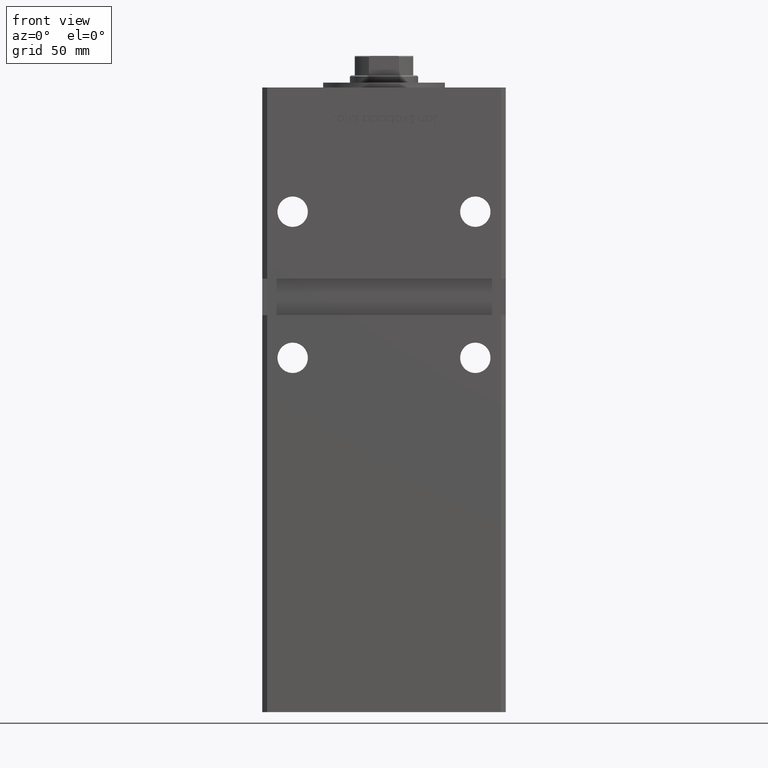
[diagram: clean part render]
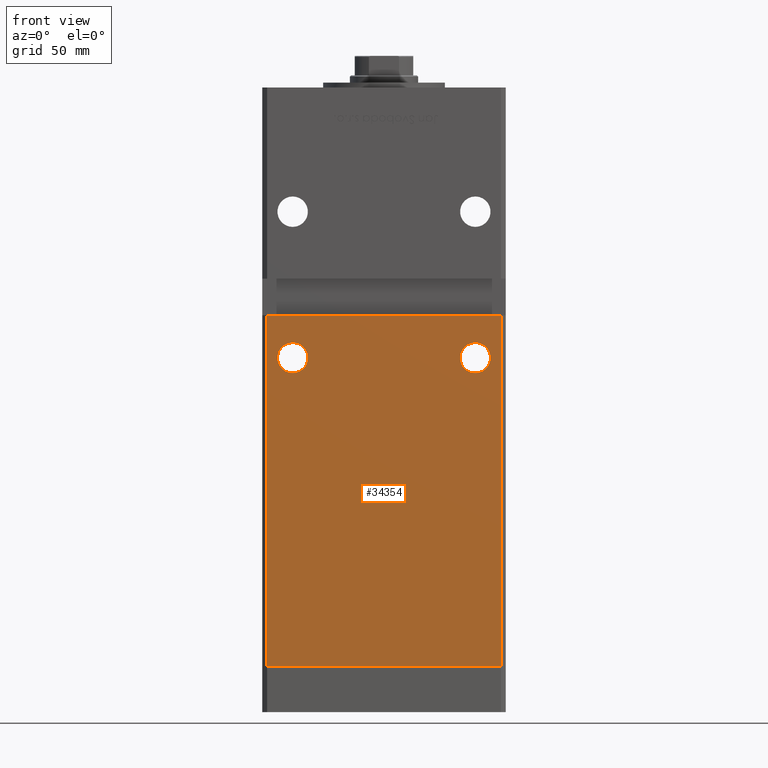
[diagram: same view with one face highlighted and labeled with its STEP entity id]
A machine part, front view. The second image highlights one B-rep face of the part: STEP entity #34354.
In plain terms, the highlighted planar face has unit normal (0, 1, 0).
Its self-contained STEP definition (entity closure, byte-faithful):
#111 = EDGE_CURVE ( 'NONE', #24371, #659, #17554, .T. ) ;
#659 = VERTEX_POINT ( 'NONE', #36686 ) ;
#1278 = AXIS2_PLACEMENT_3D ( 'NONE', #6356, #42708, #22783 ) ;
#1724 = VECTOR ( 'NONE', #17116, 1000.000000000000000 ) ;
#2578 = CARTESIAN_POINT ( 'NONE',  ( -47.99999999999998579, -43.50000000000000000, 218.5000000000000000 ) ) ;
#2851 = DIRECTION ( 'NONE',  ( 0.000000000000000000, 1.000000000000000000, 0.000000000000000000 ) ) ;
#3130 = FACE_OUTER_BOUND ( 'NONE', #46496, .T. ) ;
#3703 = DIRECTION ( 'NONE',  ( 0.000000000000000000, 0.000000000000000000, 1.000000000000000000 ) ) ;
#4659 = EDGE_CURVE ( 'NONE', #44225, #51701, #22247, .T. ) ;
#4759 = LINE ( 'NONE', #53240, #26528 ) ;
#5435 = EDGE_CURVE ( 'NONE', #25286, #23147, #4759, .T. ) ;
#5929 = EDGE_LOOP ( 'NONE', ( #47258, #20738 ) ) ;
#6356 = CARTESIAN_POINT ( 'NONE',  ( -37.50000000000000000, -43.50000000000000000, 126.5000000000000000 ) ) ;
#7306 = VECTOR ( 'NONE', #48966, 1000.000000000000000 ) ;
#7999 = EDGE_CURVE ( 'NONE', #31389, #44447, #13095, .T. ) ;
#10892 = LINE ( 'NONE', #2578, #32493 ) ;
#12667 = CARTESIAN_POINT ( 'NONE',  ( 47.99999999999998579, -43.50000000000000000, 144.0000000000000284 ) ) ;
#12888 = EDGE_CURVE ( 'NONE', #659, #24371, #50746, .T. ) ;
#13095 = LINE ( 'NONE', #29533, #1724 ) ;
#14930 = PLANE ( 'NONE',  #45194 ) ;
#15379 = EDGE_CURVE ( 'NONE', #51701, #44225, #29297, .T. ) ;
#16075 = LINE ( 'NONE', #49231, #7306 ) ;
#17116 = DIRECTION ( 'NONE',  ( 1.000000000000000000, 0.000000000000000000, 0.000000000000000000 ) ) ;
#17554 = CIRCLE ( 'NONE', #1278, 6.250000000000005329 ) ;
#18732 = CARTESIAN_POINT ( 'NONE',  ( 37.50000000000000000, -43.50000000000000000, 126.5000000000000000 ) ) ;
#18966 = DIRECTION ( 'NONE',  ( 0.000000000000000000, 0.000000000000000000, 1.000000000000000000 ) ) ;
#20738 = ORIENTED_EDGE ( 'NONE', *, *, #111, .T. ) ;
#22247 = CIRCLE ( 'NONE', #37697, 6.250000000000005329 ) ;
#22783 = DIRECTION ( 'NONE',  ( 0.000000000000000000, 0.000000000000000000, 1.000000000000000000 ) ) ;
#23147 = VERTEX_POINT ( 'NONE', #12667 ) ;
#23298 = AXIS2_PLACEMENT_3D ( 'NONE', #18732, #31144, #47582 ) ;
#23436 = CARTESIAN_POINT ( 'NONE',  ( 37.50000000000000000, -43.50000000000000000, 132.7500000000000000 ) ) ;
#24371 = VERTEX_POINT ( 'NONE', #37392 ) ;
#25286 = VERTEX_POINT ( 'NONE', #28484 ) ;
#25895 = CARTESIAN_POINT ( 'NONE',  ( -47.99999999999998579, -43.50000000000000000, 0.000000000000000000 ) ) ;
#26528 = VECTOR ( 'NONE', #33019, 1000.000000000000000 ) ;
#26539 = ORIENTED_EDGE ( 'NONE', *, *, #15379, .T. ) ;
#27539 = AXIS2_PLACEMENT_3D ( 'NONE', #44021, #2851, #18966 ) ;
#27776 = EDGE_CURVE ( 'NONE', #23147, #44447, #16075, .T. ) ;
#27864 = ORIENTED_EDGE ( 'NONE', *, *, #5435, .F. ) ;
#27875 = DIRECTION ( 'NONE',  ( 0.000000000000000000, 1.000000000000000000, 0.000000000000000000 ) ) ;
#28484 = CARTESIAN_POINT ( 'NONE',  ( -47.99999999999998579, -43.50000000000000000, 144.0000000000000284 ) ) ;
#29297 = CIRCLE ( 'NONE', #23298, 6.250000000000005329 ) ;
#29533 = CARTESIAN_POINT ( 'NONE',  ( -47.99999999999998579, -43.50000000000000000, 0.000000000000000000 ) ) ;
#30336 = CARTESIAN_POINT ( 'NONE',  ( 47.99999999999998579, -43.50000000000000000, 0.000000000000000000 ) ) ;
#31144 = DIRECTION ( 'NONE',  ( 0.000000000000000000, 1.000000000000000000, 0.000000000000000000 ) ) ;
#31389 = VERTEX_POINT ( 'NONE', #25895 ) ;
#32493 = VECTOR ( 'NONE', #48596, 1000.000000000000000 ) ;
#33019 = DIRECTION ( 'NONE',  ( 1.000000000000000000, 0.000000000000000000, 0.000000000000000000 ) ) ;
#33841 = EDGE_LOOP ( 'NONE', ( #26539, #52298 ) ) ;
#34354 = ADVANCED_FACE ( 'NONE', ( #35401, #51850, #3130 ), #14930, .F. ) ;
#34957 = CARTESIAN_POINT ( 'NONE',  ( 37.50000000000000000, -43.50000000000000000, 120.2500000000000000 ) ) ;
#35401 = FACE_BOUND ( 'NONE', #5929, .T. ) ;
#36686 = CARTESIAN_POINT ( 'NONE',  ( -37.50000000000000000, -43.50000000000000000, 132.7500000000000000 ) ) ;
#37392 = CARTESIAN_POINT ( 'NONE',  ( -37.50000000000000000, -43.50000000000000000, 120.2500000000000000 ) ) ;
#37697 = AXIS2_PLACEMENT_3D ( 'NONE', #41349, #49977, #3703 ) ;
#40412 = ORIENTED_EDGE ( 'NONE', *, *, #7999, .T. ) ;
#41349 = CARTESIAN_POINT ( 'NONE',  ( 37.50000000000000000, -43.50000000000000000, 126.5000000000000000 ) ) ;
#42708 = DIRECTION ( 'NONE',  ( 0.000000000000000000, 1.000000000000000000, 0.000000000000000000 ) ) ;
#43759 = DIRECTION ( 'NONE',  ( 0.000000000000000000, -0.000000000000000000, 1.000000000000000000 ) ) ;
#44021 = CARTESIAN_POINT ( 'NONE',  ( -37.50000000000000000, -43.50000000000000000, 126.5000000000000000 ) ) ;
#44225 = VERTEX_POINT ( 'NONE', #34957 ) ;
#44447 = VERTEX_POINT ( 'NONE', #30336 ) ;
#44881 = ORIENTED_EDGE ( 'NONE', *, *, #27776, .F. ) ;
#45194 = AXIS2_PLACEMENT_3D ( 'NONE', #47815, #27875, #43759 ) ;
#46496 = EDGE_LOOP ( 'NONE', ( #44881, #27864, #47958, #40412 ) ) ;
#47258 = ORIENTED_EDGE ( 'NONE', *, *, #12888, .T. ) ;
#47582 = DIRECTION ( 'NONE',  ( 0.000000000000000000, 0.000000000000000000, 1.000000000000000000 ) ) ;
#47815 = CARTESIAN_POINT ( 'NONE',  ( -47.99999999999998579, -43.50000000000000000, 218.5000000000000000 ) ) ;
#47958 = ORIENTED_EDGE ( 'NONE', *, *, #49444, .T. ) ;
#48596 = DIRECTION ( 'NONE',  ( -0.000000000000000000, -0.000000000000000000, -1.000000000000000000 ) ) ;
#48966 = DIRECTION ( 'NONE',  ( -0.000000000000000000, -0.000000000000000000, -1.000000000000000000 ) ) ;
#49231 = CARTESIAN_POINT ( 'NONE',  ( 47.99999999999998579, -43.50000000000000000, 218.5000000000000000 ) ) ;
#49444 = EDGE_CURVE ( 'NONE', #25286, #31389, #10892, .T. ) ;
#49977 = DIRECTION ( 'NONE',  ( 0.000000000000000000, 1.000000000000000000, 0.000000000000000000 ) ) ;
#50746 = CIRCLE ( 'NONE', #27539, 6.250000000000005329 ) ;
#51701 = VERTEX_POINT ( 'NONE', #23436 ) ;
#51850 = FACE_BOUND ( 'NONE', #33841, .T. ) ;
#52298 = ORIENTED_EDGE ( 'NONE', *, *, #4659, .T. ) ;
#53240 = CARTESIAN_POINT ( 'NONE',  ( -49.99999999999998579, -43.50000000000000000, 144.0000000000000284 ) ) ;